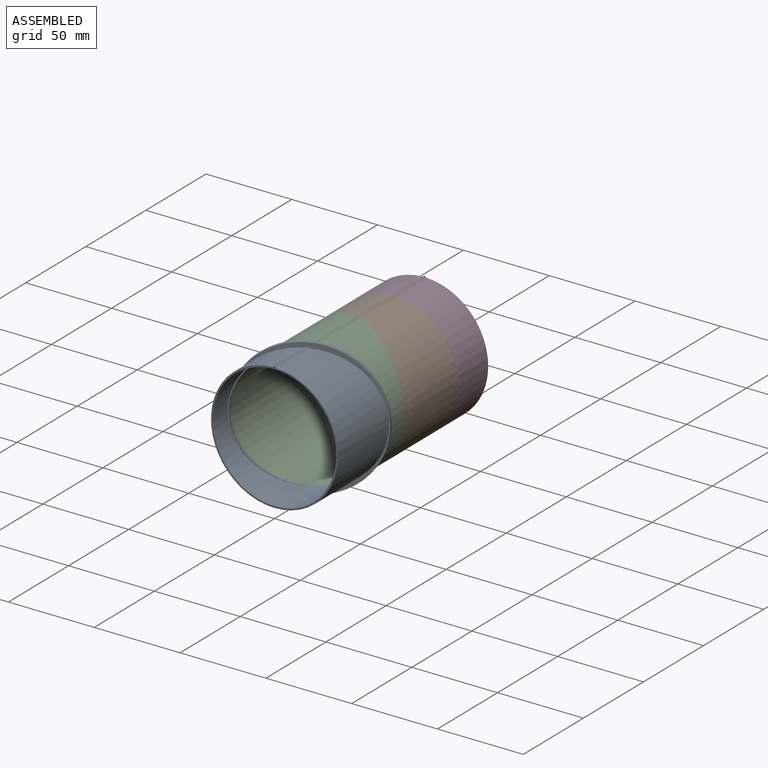
[diagram: assembled view]
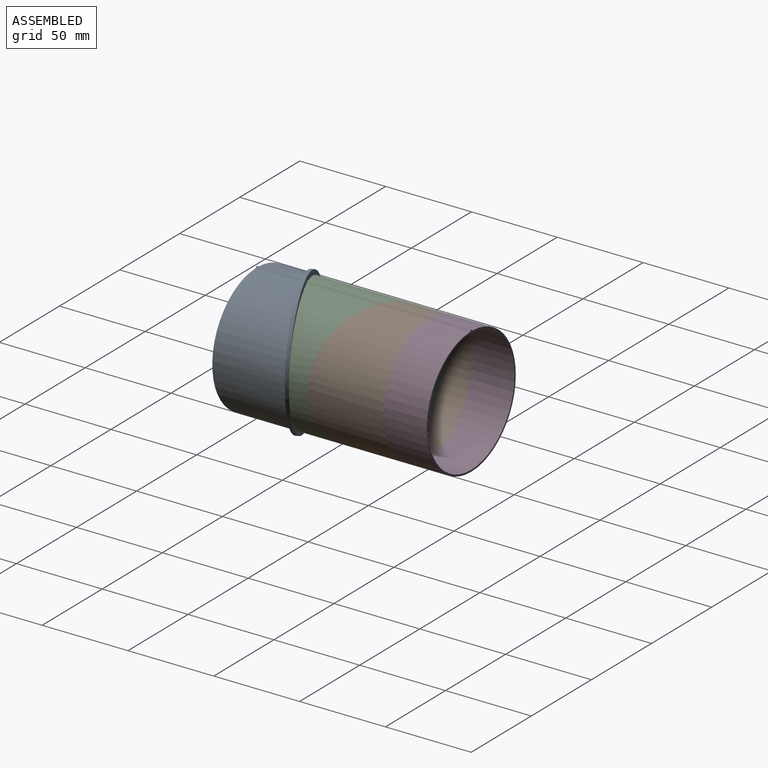
[diagram: assembled view, second angle]
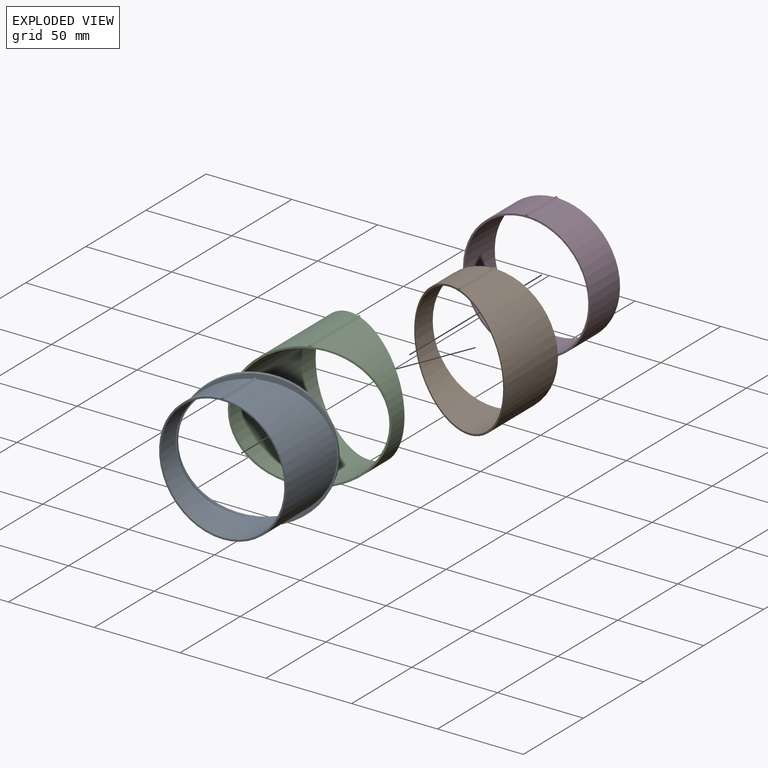
[diagram: exploded view]
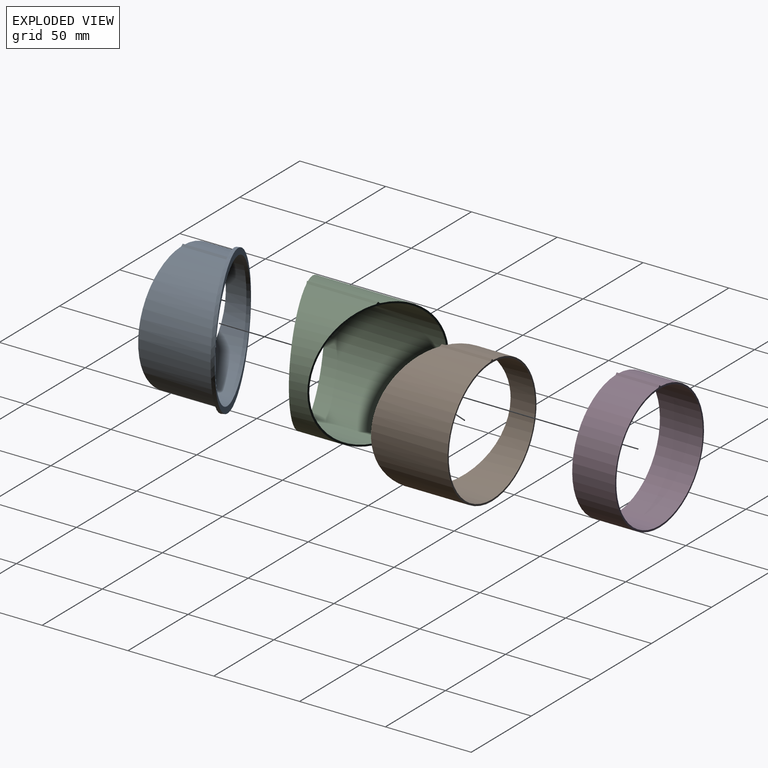
[diagram: exploded view, second angle]
ASSEMBLY  parts=4 mates=3
PART A: 10 faces, bbox 74.8x44.6x80.1 mm
  f0: plane 27.12x1mm, normal (-0.71,0,0.71), area 38.1mm2, adj f1,f3,f4,f7
  f1: cylinder r=37mm len=74mm, axis (0,1,0), area 6307.7mm2, adj f0,f3,f4,f6,f7
  f2: cylinder r=36mm len=72mm, axis (0,1,0), area 6379.4mm2, adj f4,f5,f8,f9
  f3: plane 27.54x1mm, normal (0.71,0,0.71), area 38.7mm2, adj f0,f1,f4,f7
  f4: plane 74.99x74mm, normal (0,-1,0), area 230.3mm2, adj f0,f1,f2,f3
  f5: plane 80.1x74mm, normal (-0.38,0.92,0), area 631.8mm2, adj f2,f6,f8
  f6: cylinder r=40.05mm len=80.1mm, axis (-0.38,0.92,0), area 451.6mm2, adj f1,f5,f7
  f7: plane 80.1x69.85mm, normal (0.38,-0.92,0), area 403.4mm2, adj f0,f1,f3,f6
  f8: extruded ~72x36.77mm, area 234.8mm2, adj f2,f5,f9
  f9: plane 72x36.38mm, normal (0.38,-0.92,0), area 59.6mm2, adj f2,f8
PART B: 6 faces, bbox 74x44.7x75 mm
  f0: plane 74.99x74mm, normal (-0.38,-0.92,0), area 249.3mm2, adj f1,f3,f4,f5
  f1: cylinder r=36mm len=72mm, axis (0,1,0), area 6625mm2, adj f0,f2
  f2: plane 74.99x74mm, normal (0,1,0), area 230.3mm2, adj f1,f3,f4,f5
  f3: plane 29.7x1mm, normal (0.71,0,0.71), area 41.7mm2, adj f0,f2,f4,f5
  f4: cylinder r=37mm len=74mm, axis (0,1,0), area 6750.6mm2, adj f0,f2,f3,f5
  f5: plane 29.29x1mm, normal (-0.71,0,0.71), area 41.1mm2, adj f0,f2,f3,f4
PART C: 6 faces, bbox 80.3x78.5x81.3 mm
  f0: plane 41.42x1mm, normal (0.71,0,0.71), area 58mm2, adj f1,f2,f3,f4
  f1: cylinder r=37mm len=74mm, axis (0,1,0), area 9546.6mm2, adj f0,f2,f3,f4
  f2: plane 42.25x1mm, normal (-0.71,0,0.71), area 59.2mm2, adj f0,f1,f3,f4
  f3: plane 81.26x80.27mm, normal (0.38,0.92,0), area 249.3mm2, adj f0,f1,f2,f5
  f4: plane 74.99x74mm, normal (0.38,-0.92,0), area 249.3mm2, adj f0,f1,f2,f5
  f5: cylinder r=36mm len=72mm, axis (0,1,0), area 9369.2mm2, adj f3,f4
PART D: 6 faces, bbox 74x25x75 mm
  f0: plane 25x1mm, normal (-0.71,0,0.71), area 35.4mm2, adj f1,f3,f4,f5
  f1: plane 25x1mm, normal (0.71,0,0.71), area 35.4mm2, adj f0,f3,f4,f5
  f2: cylinder r=36mm len=72mm, axis (0,-1,0), area 5654.9mm2, adj f4,f5
  f3: cylinder r=37mm len=74mm, axis (0,-1,0), area 5761.9mm2, adj f0,f1,f4,f5
  f4: plane 74.99x74mm, normal (0,1,0), area 230.3mm2, adj f0,f1,f2,f3
  f5: plane 74.99x74mm, normal (0,-1,0), area 230.3mm2, adj f0,f1,f2,f3
PLACE A t=(0,0,0.16)mm
PLACE B at identity
PLACE C at identity
PLACE D at identity fixed
MATE revolute A.f6 <-> C.f4  axis (-0.38,0.92,0) through (0,-70.71,0.16)mm
MATE revolute B.f0 <-> C.f3  axis (-0.38,-0.92,0) through (0,-29.29,0)mm
MATE revolute B.f1 <-> D.f3  axis (0,1,0) through (0,0,0)mm
